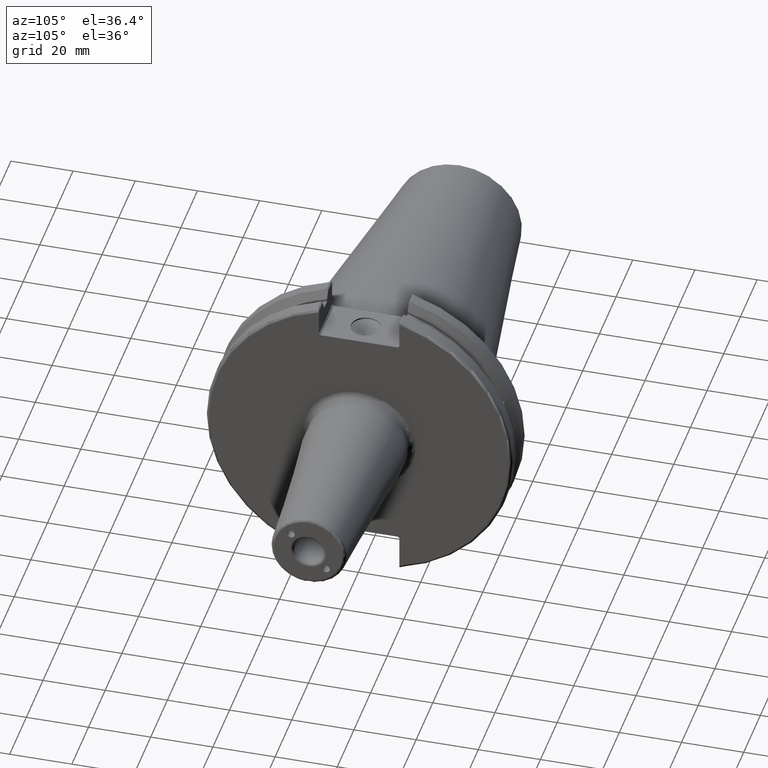
[diagram: clean part render]
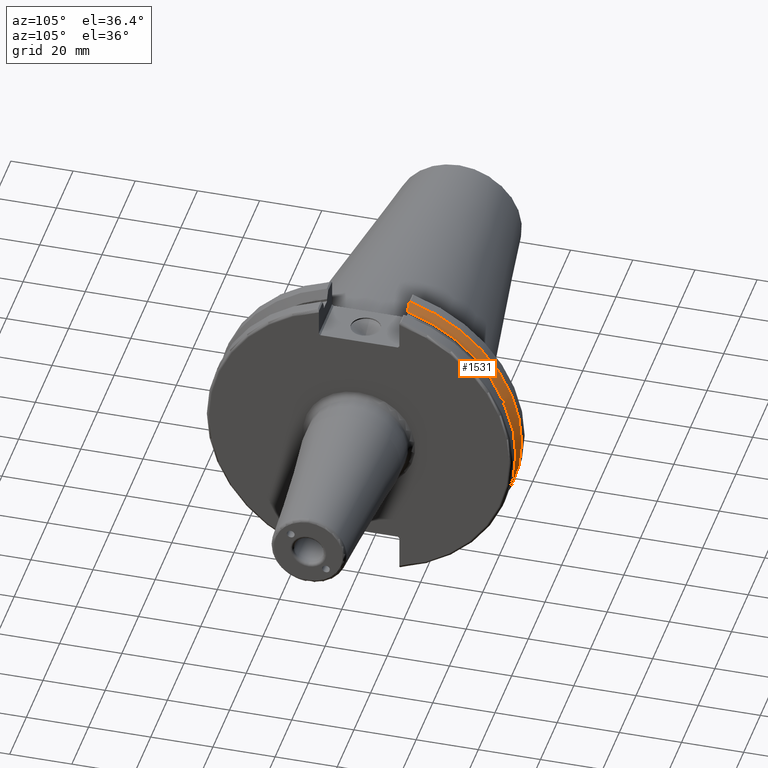
[diagram: same view with one face highlighted and labeled with its STEP entity id]
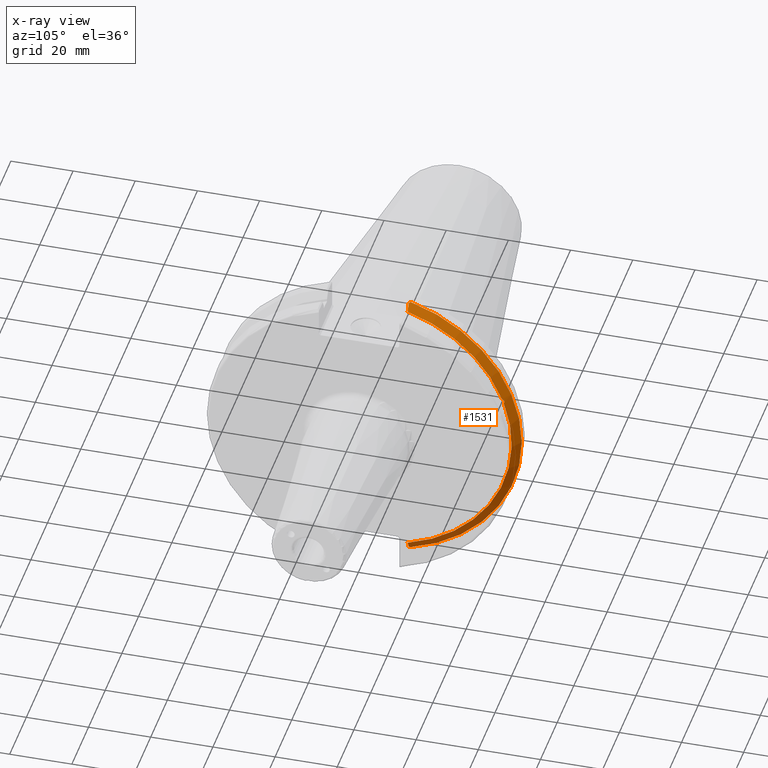
[diagram: x-ray of the same camera — body ghosted, the highlighted face saturated]
A machine part, auxiliary view. The second image highlights one B-rep face of the part: STEP entity #1531.
The next image is the same camera in x-ray: the body ghosted, the highlighted face saturated — about 0% of this face is hidden behind the body in this view.
In plain terms, the highlighted conical surface has half-angle 60 deg.
Its self-contained STEP definition (entity closure, byte-faithful):
#19=(
BOUNDED_CURVE()
B_SPLINE_CURVE(2,(#2801,#2802,#2803),.UNSPECIFIED.,.F.,.F.)
B_SPLINE_CURVE_WITH_KNOTS((3,3),(0.,0.275823910674652),.UNSPECIFIED.)
CURVE()
GEOMETRIC_REPRESENTATION_ITEM()
RATIONAL_B_SPLINE_CURVE((1.,1.00038235573731,1.00012873636533))
REPRESENTATION_ITEM('')
);
#20=(
BOUNDED_CURVE()
B_SPLINE_CURVE(2,(#2805,#2806,#2807),.UNSPECIFIED.,.F.,.F.)
B_SPLINE_CURVE_WITH_KNOTS((3,3),(0.,0.0648240472898323),.UNSPECIFIED.)
CURVE()
GEOMETRIC_REPRESENTATION_ITEM()
RATIONAL_B_SPLINE_CURVE((1.,1.00011477674853,1.00019140645976))
REPRESENTATION_ITEM('')
);
#21=(
BOUNDED_CURVE()
B_SPLINE_CURVE(2,(#2811,#2812,#2813),.UNSPECIFIED.,.F.,.F.)
B_SPLINE_CURVE_WITH_KNOTS((3,3),(0.325260944932483,0.390084992222205),
 .UNSPECIFIED.)
CURVE()
GEOMETRIC_REPRESENTATION_ITEM()
RATIONAL_B_SPLINE_CURVE((1.00019140645955,1.00011477674841,1.))
REPRESENTATION_ITEM('')
);
#22=(
BOUNDED_CURVE()
B_SPLINE_CURVE(2,(#2815,#2816,#2817),.UNSPECIFIED.,.F.,.F.)
B_SPLINE_CURVE_WITH_KNOTS((3,3),(0.0558332664491378,0.331657177124507),
 .UNSPECIFIED.)
CURVE()
GEOMETRIC_REPRESENTATION_ITEM()
RATIONAL_B_SPLINE_CURVE((1.00012873637135,1.00038235575519,1.))
REPRESENTATION_ITEM('')
);
#50=B_SPLINE_CURVE_WITH_KNOTS('',3,(#2754,#2755,#2756,#2757,#2758,#2759,
#2760,#2761,#2762,#2763,#2764,#2765,#2766,#2767),.UNSPECIFIED.,.F.,.F.,
(4,2,2,2,2,2,4),(0.426712868358718,0.441644498666905,0.480313313223129,
0.518982127779353,0.557650942335577,0.596319756891801,0.611251387199986),
 .UNSPECIFIED.);
#73=CONICAL_SURFACE('',#1685,47.8172386482472,1.0471975511966);
#186=FACE_OUTER_BOUND('',#289,.T.);
#289=EDGE_LOOP('',(#1179,#1180,#1181,#1182,#1183,#1184,#1185,#1186));
#392=CIRCLE('',#1686,46.4219772964944);
#393=CIRCLE('',#1687,49.2125);
#394=CIRCLE('',#1688,46.4219772964944);
#701=VERTEX_POINT('',#2751);
#702=VERTEX_POINT('',#2753);
#706=VERTEX_POINT('',#2798);
#707=VERTEX_POINT('',#2800);
#708=VERTEX_POINT('',#2804);
#709=VERTEX_POINT('',#2808);
#710=VERTEX_POINT('',#2810);
#711=VERTEX_POINT('',#2814);
#879=EDGE_CURVE('',#702,#701,#50,.T.);
#884=EDGE_CURVE('',#706,#701,#392,.T.);
#885=EDGE_CURVE('',#706,#707,#19,.T.);
#886=EDGE_CURVE('',#708,#707,#20,.T.);
#887=EDGE_CURVE('',#708,#709,#393,.T.);
#888=EDGE_CURVE('',#710,#709,#21,.T.);
#889=EDGE_CURVE('',#710,#711,#22,.T.);
#890=EDGE_CURVE('',#702,#711,#394,.T.);
#1179=ORIENTED_EDGE('',*,*,#879,.T.);
#1180=ORIENTED_EDGE('',*,*,#884,.F.);
#1181=ORIENTED_EDGE('',*,*,#885,.T.);
#1182=ORIENTED_EDGE('',*,*,#886,.F.);
#1183=ORIENTED_EDGE('',*,*,#887,.T.);
#1184=ORIENTED_EDGE('',*,*,#888,.F.);
#1185=ORIENTED_EDGE('',*,*,#889,.T.);
#1186=ORIENTED_EDGE('',*,*,#890,.F.);
#1531=ADVANCED_FACE('',(#186),#73,.T.);
#1685=AXIS2_PLACEMENT_3D('',#2797,#1973,#1974);
#1686=AXIS2_PLACEMENT_3D('',#2799,#1975,#1976);
#1687=AXIS2_PLACEMENT_3D('',#2809,#1977,#1978);
#1688=AXIS2_PLACEMENT_3D('',#2818,#1979,#1980);
#1973=DIRECTION('center_axis',(-1.,0.,0.));
#1974=DIRECTION('ref_axis',(0.,1.,0.));
#1975=DIRECTION('center_axis',(1.,0.,0.));
#1976=DIRECTION('ref_axis',(0.,0.,-1.));
#1977=DIRECTION('center_axis',(1.,0.,0.));
#1978=DIRECTION('ref_axis',(0.,0.,-1.));
#1979=DIRECTION('center_axis',(1.,0.,0.));
#1980=DIRECTION('ref_axis',(0.,0.,-1.));
#2751=CARTESIAN_POINT('',(9.2191,43.9096390749305,15.0646464421033));
#2753=CARTESIAN_POINT('',(9.2191,43.3201030900029,16.684383248648));
#2754=CARTESIAN_POINT('Ctrl Pts',(9.21910000000001,43.3201030900029,16.6843832486479));
#2755=CARTESIAN_POINT('Ctrl Pts',(9.20211843903392,43.3613106941341,16.6592273018006));
#2756=CARTESIAN_POINT('Ctrl Pts',(9.18608675403323,43.4012416983557,16.6326763251437));
#2757=CARTESIAN_POINT('Ctrl Pts',(9.13238673845037,43.539103734322,16.5325130832406));
#2758=CARTESIAN_POINT('Ctrl Pts',(9.09621610663555,43.6406982153491,16.441180795372));
#2759=CARTESIAN_POINT('Ctrl Pts',(9.04690868251975,43.8110833825827,16.2291323464527));
#2760=CARTESIAN_POINT('Ctrl Pts',(9.0341,43.8794096049168,16.10796730316));
#2761=CARTESIAN_POINT('Ctrl Pts',(9.0341,43.9675796948952,15.8657219718732));
#2762=CARTESIAN_POINT('Ctrl Pts',(9.04690868251975,43.9931221605126,15.7289849146254));
#2763=CARTESIAN_POINT('Ctrl Pts',(9.09621610663555,43.9989016655819,15.4570249042868));
#2764=CARTESIAN_POINT('Ctrl Pts',(9.13238673845037,43.9797830409458,15.3217566390708));
#2765=CARTESIAN_POINT('Ctrl Pts',(9.18608675403322,43.9385582852181,15.1564111356409));
#2766=CARTESIAN_POINT('Ctrl Pts',(9.20211843903391,43.9250360001461,15.1104047527575));
#2767=CARTESIAN_POINT('Ctrl Pts',(9.2191,43.9096390749305,15.0646464421033));
#2797=CARTESIAN_POINT('Origin',(8.41354548297563,0.,0.));
#2798=CARTESIAN_POINT('',(9.2191,12.95,-44.5791147973604));
#2799=CARTESIAN_POINT('Origin',(9.2191,0.,0.));
#2800=CARTESIAN_POINT('',(7.88638960562424,12.95,-46.9780755322918));
#2801=CARTESIAN_POINT('Ctrl Pts',(9.2191,12.95,-44.5791147973604));
#2802=CARTESIAN_POINT('Ctrl Pts',(8.57020449055827,12.95,-45.7494966802153));
#2803=CARTESIAN_POINT('Ctrl Pts',(7.88638960562424,12.95,-46.9780755322918));
#2804=CARTESIAN_POINT('',(7.60799096595127,13.4317035994433,-47.3440544806494));
#2805=CARTESIAN_POINT('Ctrl Pts',(7.60799096595127,13.4317035994433,-47.3440544806494));
#2806=CARTESIAN_POINT('Ctrl Pts',(7.74826896663818,13.1896660169966,-47.1601640966265));
#2807=CARTESIAN_POINT('Ctrl Pts',(7.88638960562424,12.95,-46.9780755322918));
#2808=CARTESIAN_POINT('',(7.60799096595127,13.4317035994433,47.3440544806494));
#2809=CARTESIAN_POINT('Origin',(7.60799096595127,0.,0.));
#2810=CARTESIAN_POINT('',(7.88638960562424,12.95,46.9780755322918));
#2811=CARTESIAN_POINT('Ctrl Pts',(7.88638960562424,12.95,46.9780755322917));
#2812=CARTESIAN_POINT('Ctrl Pts',(7.74826896663821,13.1896660169966,47.1601640966264));
#2813=CARTESIAN_POINT('Ctrl Pts',(7.60799096595127,13.4317035994433,47.3440544806494));
#2814=CARTESIAN_POINT('',(9.2191,12.95,44.5791147973604));
#2815=CARTESIAN_POINT('Ctrl Pts',(7.88638960562424,12.95,46.9780755322918));
#2816=CARTESIAN_POINT('Ctrl Pts',(8.57020449055492,12.95,45.7494966802213));
#2817=CARTESIAN_POINT('Ctrl Pts',(9.2191,12.95,44.5791147973604));
#2818=CARTESIAN_POINT('Origin',(9.2191,0.,0.));